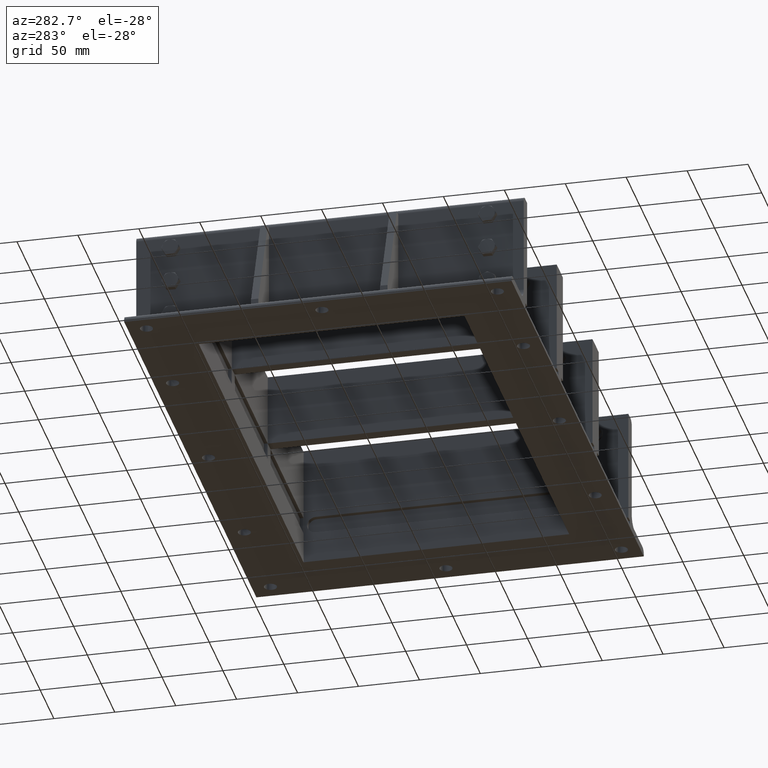
[diagram: clean part render]
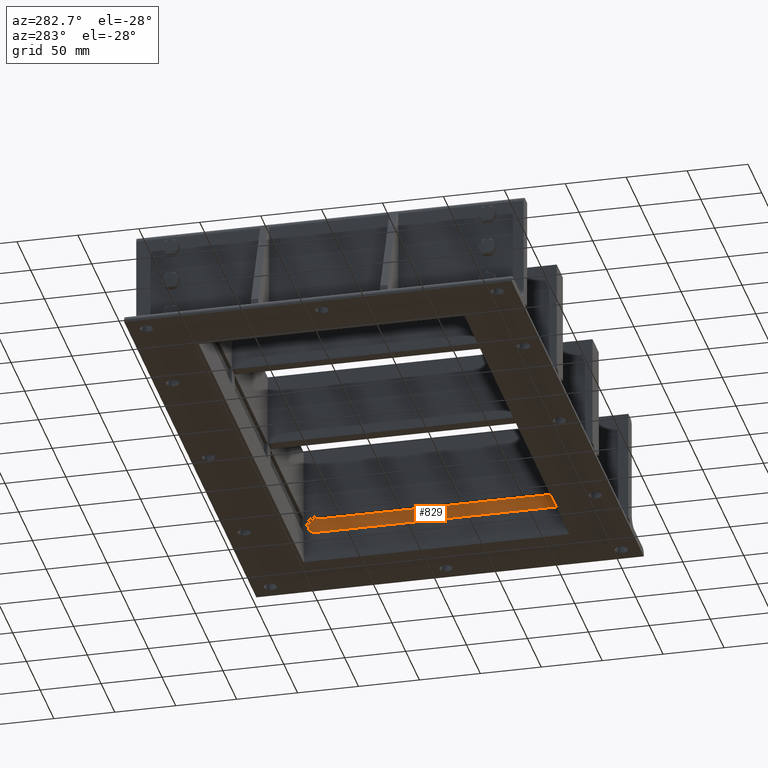
[diagram: same view with one face highlighted and labeled with its STEP entity id]
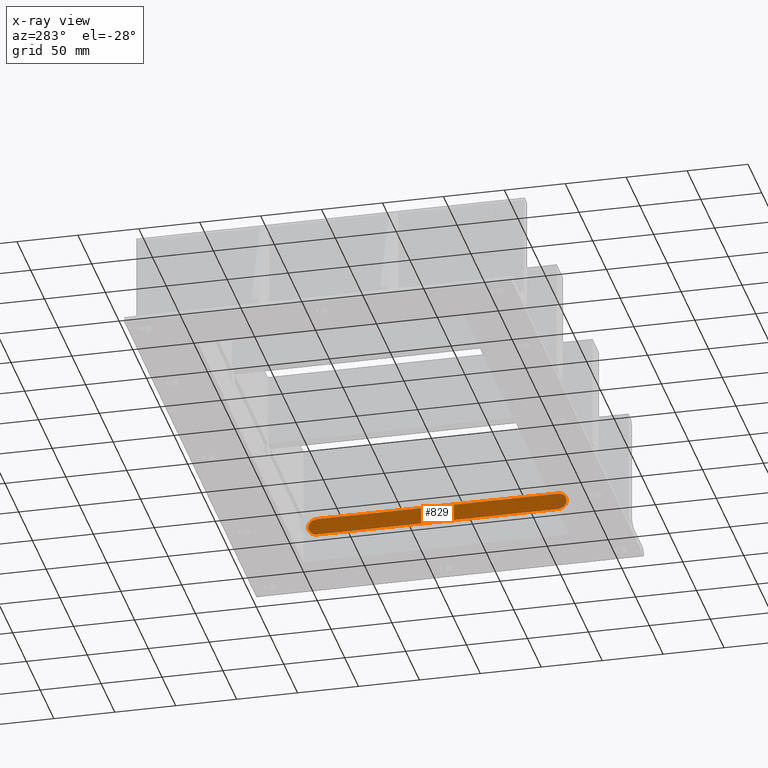
[diagram: x-ray of the same camera — body ghosted, the highlighted face saturated]
A machine part, auxiliary view. The second image highlights one B-rep face of the part: STEP entity #829.
The next image is the same camera in x-ray: the body ghosted, the highlighted face saturated — about 4% of this face is hidden behind the body in this view.
In plain terms, the highlighted planar face has unit normal (1, -0, 0).
Its self-contained STEP definition (entity closure, byte-faithful):
#705=CARTESIAN_POINT('',(4.000000000000004,60.0,26.000000000000032));
#706=VERTEX_POINT('',#705);
#713=CARTESIAN_POINT('',(4.000000000000004,258.0,26.0));
#714=VERTEX_POINT('',#713);
#715=CARTESIAN_POINT('',(4.000000000000004,60.0,26.000000000000032));
#716=DIRECTION('',(0.0,1.0,0.0));
#717=VECTOR('',#716,198.0);
#718=LINE('',#715,#717);
#719=EDGE_CURVE('',#706,#714,#718,.T.);
#744=CARTESIAN_POINT('',(4.000000000000005,60.0,40.000000000000014));
#745=VERTEX_POINT('',#744);
#752=CARTESIAN_POINT('',(4.000000000000004,60.0,33.000000000000028));
#753=DIRECTION('',(1.0,0.0,0.0));
#754=DIRECTION('',(0.0,0.0,1.0));
#755=AXIS2_PLACEMENT_3D('',#752,#753,#754);
#756=CIRCLE('',#755,6.999999999999998);
#757=EDGE_CURVE('',#745,#706,#756,.T.);
#776=CARTESIAN_POINT('',(4.000000000000005,258.0,40.000000000000007));
#777=VERTEX_POINT('',#776);
#784=CARTESIAN_POINT('',(4.000000000000005,258.0,40.000000000000007));
#785=DIRECTION('',(0.0,-1.0,0.0));
#786=VECTOR('',#785,198.0);
#787=LINE('',#784,#786);
#788=EDGE_CURVE('',#777,#745,#787,.T.);
#807=CARTESIAN_POINT('',(4.000000000000004,258.0,33.000000000000007));
#808=DIRECTION('',(1.0,0.0,0.0));
#809=DIRECTION('',(0.0,0.0,-1.0));
#810=AXIS2_PLACEMENT_3D('',#807,#808,#809);
#811=CIRCLE('',#810,6.999999999999991);
#812=EDGE_CURVE('',#714,#777,#811,.T.);
#818=CARTESIAN_POINT('',(4.000000000000004,159.00002163767334,33.000000000000007));
#819=DIRECTION('',(1.0,0.0,0.0));
#820=DIRECTION('',(0.0,0.0,-1.0));
#821=AXIS2_PLACEMENT_3D('',#818,#819,#820);
#822=PLANE('',#821);
#823=ORIENTED_EDGE('',*,*,#812,.F.);
#824=ORIENTED_EDGE('',*,*,#719,.F.);
#825=ORIENTED_EDGE('',*,*,#757,.F.);
#826=ORIENTED_EDGE('',*,*,#788,.F.);
#827=EDGE_LOOP('',(#823,#824,#825,#826));
#828=FACE_OUTER_BOUND('',#827,.T.);
#829=ADVANCED_FACE('',(#828),#822,.F.);